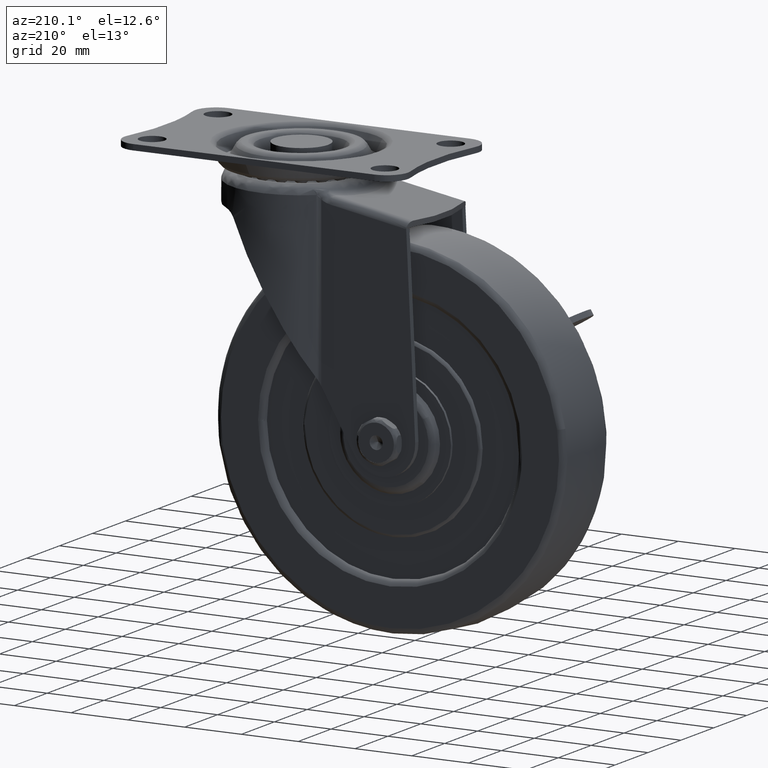
[diagram: clean part render]
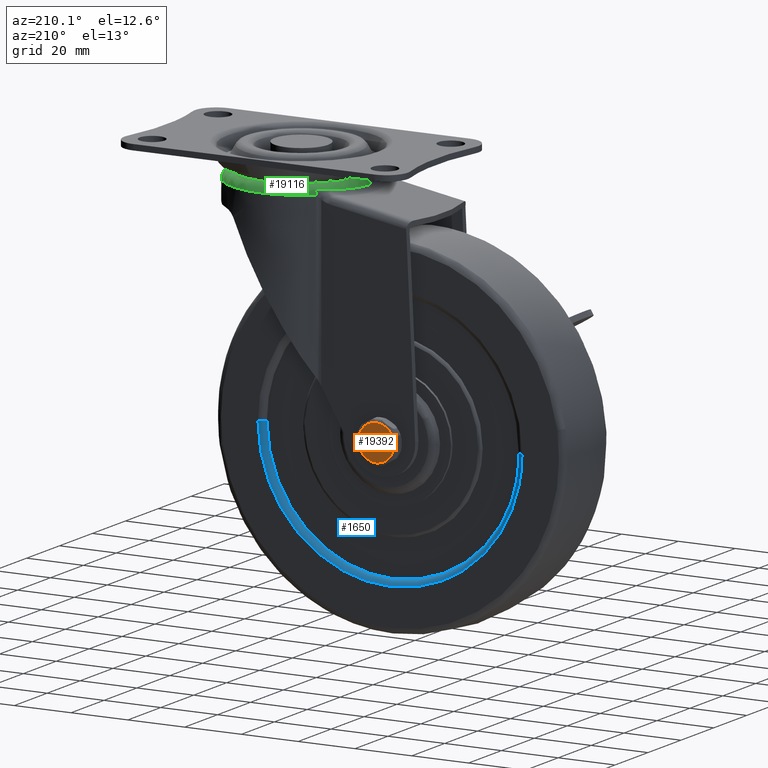
[diagram: same view with three faces highlighted in distinct colors, each labeled with its STEP entity id]
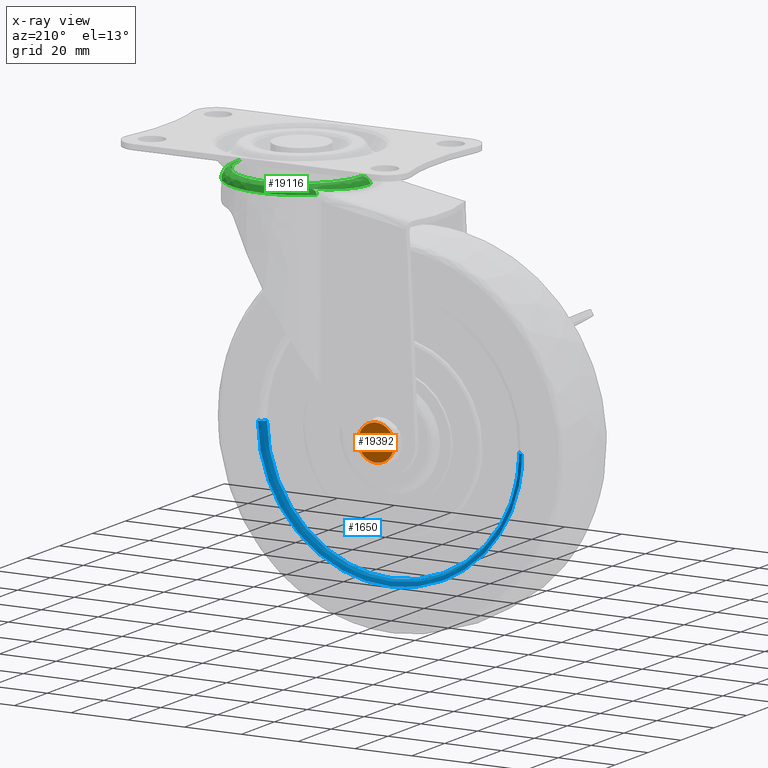
[diagram: x-ray of the same camera — body ghosted, the three highlighted faces saturated]
A machine part, auxiliary view with three faces highlighted in distinct colors.
The next image is the same camera in x-ray (body ghosted, the three faces saturated) — at least one of them is partly hidden behind the body in this view.
Their STEP definitions:

[orange] entity #19392 — the highlighted face is a freeform B-spline surface patch.
#19219=CARTESIAN_POINT('',(-39.0,21.899977000000099,-81.200000000000017));
#19220=VERTEX_POINT('',#19219);
#19226=CARTESIAN_POINT('',(-36.700000000000003,21.899977000000099,-83.499999962613131));
#19227=VERTEX_POINT('',#19226);
#19228=CARTESIAN_POINT('',(-39.0,21.899977000000099,-81.200000000000017));
#19229=CARTESIAN_POINT('',(-38.680043280916657,21.899977000000082,-81.199607695411345));
#19230=CARTESIAN_POINT('',(-38.097043868513033,21.899977000000192,-81.323700505396829));
#19231=CARTESIAN_POINT('',(-37.446073399224339,21.899977000000039,-81.758721596186646));
#19232=CARTESIAN_POINT('',(-37.025167456945617,21.899977000000110,-82.271748772366422));
#19233=CARTESIAN_POINT('',(-36.764259684013169,21.899977000000369,-82.841454471461631));
#19234=CARTESIAN_POINT('',(-36.699895989396737,21.899976999999922,-83.274188792091621));
#19235=CARTESIAN_POINT('',(-36.700000000000003,21.899977000000099,-83.499999962613131));
#19236=B_SPLINE_CURVE_WITH_KNOTS('',3,(#19228,#19229,#19230,#19231,#19232,#19233,#19234,#19235),.UNSPECIFIED.,.F.,.U.,(4,1,1,1,1,4),(0.000000568591018,0.959688155571762,1.750088887242357,2.314488197470865,2.935511421059009,3.612922191001572),.UNSPECIFIED.);
#19237=EDGE_CURVE('',#19220,#19227,#19236,.T.);
#19239=CARTESIAN_POINT('',(-39.0,21.899977000000099,-85.800000000000011));
#19240=VERTEX_POINT('',#19239);
#19241=CARTESIAN_POINT('',(-36.700000000000003,21.899977000000099,-83.499999962613131));
#19242=CARTESIAN_POINT('',(-36.699308927568637,21.899977000000060,-83.876497456280930));
#19243=CARTESIAN_POINT('',(-36.846381348828160,21.899977000000199,-84.459080024510271));
#19244=CARTESIAN_POINT('',(-37.302828607061642,21.899977000000000,-85.089930876763901));
#19245=CARTESIAN_POINT('',(-37.727793231173990,21.899977000000160,-85.438703684002746));
#19246=CARTESIAN_POINT('',(-38.285109229134591,21.899977000000082,-85.719286644313385));
#19247=CARTESIAN_POINT('',(-38.717702956053913,21.899977000000110,-85.800242344159471));
#19248=CARTESIAN_POINT('',(-39.0,21.899977000000099,-85.800000000000011));
#19249=B_SPLINE_CURVE_WITH_KNOTS('',3,(#19241,#19242,#19243,#19244,#19245,#19246,#19247,#19248),.UNSPECIFIED.,.F.,.U.,(4,1,1,1,1,4),(0.000000568537716,1.129061837099272,1.750088907571568,2.314488224536928,2.766146786319358,3.612922233146322),.UNSPECIFIED.);
#19250=EDGE_CURVE('',#19227,#19240,#19249,.T.);
#19278=CARTESIAN_POINT('',(-41.299999999999997,21.899977000000099,-83.500000037386869));
#19279=VERTEX_POINT('',#19278);
#19280=CARTESIAN_POINT('',(-39.0,21.899977000000099,-85.800000000000011));
#19281=CARTESIAN_POINT('',(-39.206981896674897,21.899977000000089,-85.800052974006121));
#19282=CARTESIAN_POINT('',(-39.620941352251911,21.899977000000138,-85.743775528898553));
#19283=CARTESIAN_POINT('',(-40.161993513680933,21.899977000000099,-85.511827317311514));
#19284=CARTESIAN_POINT('',(-40.629077016403293,21.899977000000131,-85.156445370502539));
#19285=CARTESIAN_POINT('',(-40.961287337321863,21.899977000000060,-84.741338297173996));
#19286=CARTESIAN_POINT('',(-41.228054272913482,21.899977000000149,-84.177281797794990));
#19287=CARTESIAN_POINT('',(-41.300180327831733,21.899977000000099,-83.763463169832946));
#19288=CARTESIAN_POINT('',(-41.299999999999997,21.899977000000099,-83.500000037386869));
#19289=B_SPLINE_CURVE_WITH_KNOTS('',3,(#19280,#19281,#19282,#19283,#19284,#19285,#19286,#19287,#19288),.UNSPECIFIED.,.F.,.U.,(4,1,1,1,1,1,4),(0.000000568589358,0.620955677129252,1.241960351690413,1.750088887241484,2.370976398831357,2.822605707102803,3.612922191001495),.UNSPECIFIED.);
#19290=EDGE_CURVE('',#19240,#19279,#19289,.T.);
#19292=CARTESIAN_POINT('',(-41.299999999999997,21.899977000000099,-83.500000037386869));
#19293=CARTESIAN_POINT('',(-41.300683530908387,21.899977000000181,-83.142326356791173));
#19294=CARTESIAN_POINT('',(-41.161055792674013,21.899976999999989,-82.559696282035958));
#19295=CARTESIAN_POINT('',(-40.657219118326033,21.899977000000199,-81.844190890191484));
#19296=CARTESIAN_POINT('',(-39.959368177592182,21.899977000000000,-81.339586241588592));
#19297=CARTESIAN_POINT('',(-39.338740191148979,21.899977000000160,-81.199591214428878));
#19298=CARTESIAN_POINT('',(-39.0,21.899977000000099,-81.200000000000017));
#19299=B_SPLINE_CURVE_WITH_KNOTS('',3,(#19292,#19293,#19294,#19295,#19296,#19297,#19298),.UNSPECIFIED.,.F.,.U.,(4,1,1,1,4),(0.000000568537930,1.072594207634911,1.750088907571577,2.596778110241645,3.612922233146314),.UNSPECIFIED.);
#19300=EDGE_CURVE('',#19279,#19220,#19299,.T.);
#19307=CARTESIAN_POINT('',(-45.929370195557368,21.899977000000050,-76.570629804441239));
#19308=CARTESIAN_POINT('',(-45.929370195557368,21.899977000000050,-90.429370533517115));
#19309=CARTESIAN_POINT('',(-32.070629466484277,21.899977000000050,-76.570629804441239));
#19310=CARTESIAN_POINT('',(-32.070629466484277,21.899977000000050,-90.429370533517115));
#19311=B_SPLINE_SURFACE_WITH_KNOTS('',1,1,((#19307,#19309),(#19308,#19310)),.UNSPECIFIED.,.F.,.F.,.U.,(2,2),(2,2),(0.0,13.858740729075871),(0.0,13.858740729073080),.UNSPECIFIED.);
#19312=CARTESIAN_POINT('',(-39.0,21.899977000000050,-77.199999800000001));
#19313=VERTEX_POINT('',#19312);
#19314=CARTESIAN_POINT('',(-32.699999800001272,21.899977000000050,-83.500003987988094));
#19315=VERTEX_POINT('',#19314);
#19316=CARTESIAN_POINT('',(-39.0,21.899977000000050,-77.199999800000001));
#19317=CARTESIAN_POINT('',(-38.329905645532172,21.899977000000050,-77.199641607037933));
#19318=CARTESIAN_POINT('',(-37.350860548077343,21.899977000000039,-77.357735282801301));
#19319=CARTESIAN_POINT('',(-36.061671938305992,21.899977000000071,-77.891874238946187));
#19320=CARTESIAN_POINT('',(-35.099035302932343,21.899976999999961,-78.501399067909745));
#19321=CARTESIAN_POINT('',(-34.198837209303832,21.899977000000138,-79.358475290446080));
#19322=CARTESIAN_POINT('',(-33.483124397174713,21.899976999999989,-80.374706947941064));
#19323=CARTESIAN_POINT('',(-32.874376142465678,21.899977000000060,-81.747785926569506));
#19324=CARTESIAN_POINT('',(-32.699634132471203,21.899977000000181,-82.829912431492474));
#19325=CARTESIAN_POINT('',(-32.699999800001272,21.899977000000050,-83.500003987988094));
#19326=B_SPLINE_CURVE_WITH_KNOTS('',3,(#19316,#19317,#19318,#19319,#19320,#19321,#19322,#19323,#19324,#19325),.UNSPECIFIED.,.F.,.U.,(4,1,1,1,1,1,1,4),(0.000000168659554,2.010166050306901,2.937968078399291,4.175042789420404,5.411981030164508,6.649023651199970,7.886101871104133,9.896267751228919),.UNSPECIFIED.);
#19327=EDGE_CURVE('',#19313,#19315,#19326,.T.);
#19328=ORIENTED_EDGE('',*,*,#19327,.T.);
#19329=CARTESIAN_POINT('',(-34.430140775598403,21.899976999990020,-87.836634839838041));
#19330=VERTEX_POINT('',#19329);
#19331=CARTESIAN_POINT('',(-32.699999800001272,21.899977000000050,-83.500003987988094));
#19332=CARTESIAN_POINT('',(-32.698940850980442,21.899976999998039,-84.347172804762820));
#19333=CARTESIAN_POINT('',(-33.026875853403872,21.899976999994440,-85.940578323890350));
#19334=CARTESIAN_POINT('',(-33.915216676893138,21.899976999991249,-87.294863771438827));
#19335=CARTESIAN_POINT('',(-34.430140775598403,21.899976999990020,-87.836634839838041));
#19336=B_SPLINE_CURVE_WITH_KNOTS('',3,(#19331,#19332,#19333,#19334,#19335),.UNSPECIFIED.,.F.,.U.,(4,1,4),(0.000000058221381,2.541056882124225,4.783183777210583),.UNSPECIFIED.);
#19337=EDGE_CURVE('',#19315,#19330,#19336,.T.);
#19338=ORIENTED_EDGE('',*,*,#19337,.T.);
#19339=CARTESIAN_POINT('',(-39.0,21.899977000000050,-89.800000200000014));
#19340=VERTEX_POINT('',#19339);
#19341=CARTESIAN_POINT('',(-34.430140775598403,21.899976999990020,-87.836634839838041));
#19342=CARTESIAN_POINT('',(-34.979570624826579,21.899976999991221,-88.416813325256001));
#19343=CARTESIAN_POINT('',(-35.994333818058479,21.899976999993491,-89.141687384305300));
#19344=CARTESIAN_POINT('',(-37.615303057194808,21.899976999997008,-89.696136533359379));
#19345=CARTESIAN_POINT('',(-38.520649375380643,21.899976999999030,-89.800095257769996));
#19346=CARTESIAN_POINT('',(-39.0,21.899977000000050,-89.800000200000014));
#19347=B_SPLINE_CURVE_WITH_KNOTS('',3,(#19341,#19342,#19343,#19344,#19345,#19346),.UNSPECIFIED.,.F.,.U.,(4,1,1,4),(0.000000044692816,2.396756971834563,3.675025704622030,5.113079344944419),.UNSPECIFIED.);
#19348=EDGE_CURVE('',#19330,#19340,#19347,.T.);
#19349=ORIENTED_EDGE('',*,*,#19348,.T.);
#19350=CARTESIAN_POINT('',(-45.300000199998742,21.899977000000050,-83.499996012011977));
#19351=VERTEX_POINT('',#19350);
#19352=CARTESIAN_POINT('',(-39.0,21.899977000000050,-89.800000200000014));
#19353=CARTESIAN_POINT('',(-39.773264276601822,21.899977000000010,-89.800722955834189));
#19354=CARTESIAN_POINT('',(-40.958128355802302,21.899977000000131,-89.578845515217665));
#19355=CARTESIAN_POINT('',(-42.577361412985823,21.899976999999971,-88.763843886198657));
#19356=CARTESIAN_POINT('',(-43.682067388234067,21.899977000000099,-87.811103390592109));
#19357=CARTESIAN_POINT('',(-44.457138455632723,21.899977000000028,-86.709926172211823));
#19358=CARTESIAN_POINT('',(-45.098240362152730,21.899977000000039,-85.355134609666678));
#19359=CARTESIAN_POINT('',(-45.300677957904767,21.899977000000071,-84.273242826601503));
#19360=CARTESIAN_POINT('',(-45.300000199998742,21.899977000000050,-83.499996012011977));
#19361=B_SPLINE_CURVE_WITH_KNOTS('',3,(#19352,#19353,#19354,#19355,#19356,#19357,#19358,#19359,#19360),.UNSPECIFIED.,.F.,.U.,(4,1,1,1,1,1,4),(0.000000168655509,2.319436469262782,3.556518993495343,5.411981030164360,6.649023651200336,7.576831451330290,9.896267751228915),.UNSPECIFIED.);
#19362=EDGE_CURVE('',#19340,#19351,#19361,.T.);
#19363=ORIENTED_EDGE('',*,*,#19362,.T.);
#19364=CARTESIAN_POINT('',(-43.569859224401583,21.899976999990020,-79.163365160161959));
#19365=VERTEX_POINT('',#19364);
#19366=CARTESIAN_POINT('',(-45.300000199998742,21.899977000000050,-83.499996012011977));
#19367=CARTESIAN_POINT('',(-45.300179651073798,21.899976999998788,-82.951915082605368));
#19368=CARTESIAN_POINT('',(-45.175636933274717,21.899976999996579,-82.005366094809247));
#19369=CARTESIAN_POINT('',(-44.617689841257267,21.899976999993140,-80.504120788265084));
#19370=CARTESIAN_POINT('',(-44.015978478549322,21.899976999991040,-79.633011492009373));
#19371=CARTESIAN_POINT('',(-43.569859224401583,21.899976999990020,-79.163365160161959));
#19372=B_SPLINE_CURVE_WITH_KNOTS('',3,(#19366,#19367,#19368,#19369,#19370,#19371),.UNSPECIFIED.,.F.,.U.,(4,1,1,4),(0.000000058224711,1.644235513682417,2.839996938005005,4.783183777210668),.UNSPECIFIED.);
#19373=EDGE_CURVE('',#19351,#19365,#19372,.T.);
#19374=ORIENTED_EDGE('',*,*,#19373,.T.);
#19375=CARTESIAN_POINT('',(-43.569859224401583,21.899976999990020,-79.163365160161959));
#19376=CARTESIAN_POINT('',(-43.020431758566161,21.899976999991249,-78.583192274436911));
#19377=CARTESIAN_POINT('',(-42.005664812559992,21.899976999993410,-77.858309267800294));
#19378=CARTESIAN_POINT('',(-40.384697391167720,21.899976999997069,-77.303864957330433));
#19379=CARTESIAN_POINT('',(-39.479351064884092,21.899976999998930,-77.199904159735709));
#19380=CARTESIAN_POINT('',(-39.0,21.899977000000050,-77.199999800000001));
#19381=B_SPLINE_CURVE_WITH_KNOTS('',3,(#19375,#19376,#19377,#19378,#19379,#19380),.UNSPECIFIED.,.F.,.U.,(4,1,1,4),(0.000000044693811,2.396756971834755,3.675025704621969,5.113079344944389),.UNSPECIFIED.);
#19382=EDGE_CURVE('',#19365,#19313,#19381,.T.);
#19383=ORIENTED_EDGE('',*,*,#19382,.T.);
#19384=EDGE_LOOP('',(#19328,#19338,#19349,#19363,#19374,#19383));
#19385=FACE_OUTER_BOUND('',#19384,.T.);
#19386=ORIENTED_EDGE('',*,*,#19237,.F.);
#19387=ORIENTED_EDGE('',*,*,#19300,.F.);
#19388=ORIENTED_EDGE('',*,*,#19290,.F.);
#19389=ORIENTED_EDGE('',*,*,#19250,.F.);
#19390=EDGE_LOOP('',(#19386,#19387,#19388,#19389));
#19391=FACE_BOUND('',#19390,.T.);
#19392=ADVANCED_FACE('',(#19385,#19391),#19311,.F.);

[blue] entity #1650 — the highlighted face is a freeform B-spline surface patch.
#1417=CARTESIAN_POINT('',(5.499999999999994,11.500000000336749,-83.500000000000000));
#1418=VERTEX_POINT('',#1417);
#1436=CARTESIAN_POINT('',(-39.0,11.500000000000000,-128.0));
#1437=VERTEX_POINT('',#1436);
#1438=CARTESIAN_POINT('',(5.499999999999994,11.500000000336749,-83.500000000000000));
#1439=CARTESIAN_POINT('',(5.501095709621974,11.500000000322631,-87.231771956159463));
#1440=CARTESIAN_POINT('',(4.739703347586644,11.500000000297010,-93.238276783173717));
#1441=CARTESIAN_POINT('',(2.326103529676426,11.500000000261130,-100.323817290707100));
#1442=CARTESIAN_POINT('',(-0.431746373381908,11.500000000229081,-105.974491272562900));
#1443=CARTESIAN_POINT('',(-3.527604417023891,11.500000000200210,-110.607869287791000));
#1444=CARTESIAN_POINT('',(-7.889615655257165,11.500000000164670,-115.510325501181400));
#1445=CARTESIAN_POINT('',(-12.812422811459539,11.500000000130470,-119.730791812222710));
#1446=CARTESIAN_POINT('',(-18.129460674823189,11.500000000098090,-122.939720709102500));
#1447=CARTESIAN_POINT('',(-23.959423493369648,11.500000000066359,-125.524046259319210));
#1448=CARTESIAN_POINT('',(-30.535606617927609,11.500000000033831,-127.452995209059590));
#1449=CARTESIAN_POINT('',(-36.087467763319189,11.500000000011500,-128.000373858092590));
#1450=CARTESIAN_POINT('',(-39.0,11.500000000000000,-128.0));
#1451=B_SPLINE_CURVE_WITH_KNOTS('',3,(#1438,#1439,#1440,#1441,#1442,#1443,#1444,#1445,#1446,#1447,#1448,#1449,#1450),.UNSPECIFIED.,.F.,.U.,(4,1,1,1,1,1,1,1,1,1,4),(0.000000150407701,11.194974218140670,18.021236157259299,22.390029784453429,30.035465927513538,34.677314554955110,42.049484717309547,49.421858302059817,53.244559038070953,61.163011525678407,69.900546195872209),.UNSPECIFIED.);
#1452=EDGE_CURVE('',#1418,#1437,#1451,.T.);
#1454=CARTESIAN_POINT('',(-83.499999999999986,11.500000000336749,-83.500000000000014));
#1455=VERTEX_POINT('',#1454);
#1456=CARTESIAN_POINT('',(-39.0,11.500000000000000,-128.0));
#1457=CARTESIAN_POINT('',(-42.276641278847343,11.500000000012330,-128.000643746098210));
#1458=CARTESIAN_POINT('',(-47.191196482396599,11.500000000033140,-127.454575152181500));
#1459=CARTESIAN_POINT('',(-53.944292017460377,11.500000000065810,-125.540952122712600));
#1460=CARTESIAN_POINT('',(-58.898643573948029,11.500000000092561,-123.435116953715910));
#1461=CARTESIAN_POINT('',(-64.648063739012116,11.500000000126960,-120.084645981477490));
#1462=CARTESIAN_POINT('',(-69.550395250708888,11.500000000160631,-116.111346619095200));
#1463=CARTESIAN_POINT('',(-74.431914181068933,11.500000000199440,-110.691974915607600));
#1464=CARTESIAN_POINT('',(-77.969242283034134,11.500000000233401,-105.362798553049200));
#1465=CARTESIAN_POINT('',(-80.856223338117829,11.500000000267800,-99.059392082617407));
#1466=CARTESIAN_POINT('',(-82.937535092767774,11.500000000302499,-91.964330892995690));
#1467=CARTESIAN_POINT('',(-83.500471258285131,11.500000000325279,-86.594567137924244));
#1468=CARTESIAN_POINT('',(-83.499999999999986,11.500000000336749,-83.500000000000014));
#1469=B_SPLINE_CURVE_WITH_KNOTS('',3,(#1456,#1457,#1458,#1459,#1460,#1461,#1462,#1463,#1464,#1465,#1466,#1467,#1468),.UNSPECIFIED.,.F.,.U.,(4,1,1,1,1,1,1,1,1,1,4),(0.000000150272314,9.829723992034658,14.744630871790109,21.024788737422160,25.939663578315969,34.677314554884568,39.865081154134032,47.783547530530207,53.790657724606547,60.616929668723422,69.900546195872323),.UNSPECIFIED.);
#1470=EDGE_CURVE('',#1437,#1455,#1469,.T.);
#1521=CARTESIAN_POINT('',(-85.499999995176850,13.500000000000000,-83.500000000000028));
#1522=VERTEX_POINT('',#1521);
#1523=CARTESIAN_POINT('',(-85.499999995176850,13.500000000000000,-83.500000000000028));
#1524=CARTESIAN_POINT('',(-85.287276550472143,13.500106203011651,-83.500000000000142));
#1525=CARTESIAN_POINT('',(-84.894666393143851,13.436730921115160,-83.499999999999957));
#1526=CARTESIAN_POINT('',(-84.300923342440342,13.147201580215251,-83.500000000000171));
#1527=CARTESIAN_POINT('',(-83.876412523873213,12.722652602914289,-83.499999999999815));
#1528=CARTESIAN_POINT('',(-83.573271493882430,12.137986995358920,-83.500000000000725));
#1529=CARTESIAN_POINT('',(-83.499776126116075,11.745476761175370,-83.499999999998394));
#1530=CARTESIAN_POINT('',(-83.499999999999986,11.500000000336749,-83.500000000000014));
#1531=B_SPLINE_CURVE_WITH_KNOTS('',3,(#1523,#1524,#1525,#1526,#1527,#1528,#1529,#1530),.UNSPECIFIED.,.F.,.U.,(4,1,1,1,1,4),(0.000000632996267,0.638145698779228,1.178170114691719,1.963502004179996,2.405343519697170,3.141671485887760),.UNSPECIFIED.);
#1532=EDGE_CURVE('',#1522,#1455,#1531,.T.);
#1553=CARTESIAN_POINT('',(7.499999995176859,13.500000000000000,-83.499999999999972));
#1554=VERTEX_POINT('',#1553);
#1572=CARTESIAN_POINT('',(7.499999995176859,13.500000000000000,-83.499999999999972));
#1573=CARTESIAN_POINT('',(7.320020320770468,13.500044030685849,-83.500000000000043));
#1574=CARTESIAN_POINT('',(6.927322508527704,13.446672476681931,-83.499999999999901));
#1575=CARTESIAN_POINT('',(6.324524378838445,13.170839708858191,-83.500000000000128));
#1576=CARTESIAN_POINT('',(5.899986743466039,12.746244117292211,-83.500000000000171));
#1577=CARTESIAN_POINT('',(5.583313803731103,12.170617713393719,-83.500000000000000));
#1578=CARTESIAN_POINT('',(5.499615255203899,11.778243022437010,-83.500000000000014));
#1579=CARTESIAN_POINT('',(5.499999999999994,11.500000000336749,-83.500000000000000));
#1580=B_SPLINE_CURVE_WITH_KNOTS('',3,(#1572,#1573,#1574,#1575,#1576,#1577,#1578,#1579),.UNSPECIFIED.,.F.,.U.,(4,1,1,1,1,4),(0.000000633005274,0.539958778074503,1.178170114699498,1.963502004185218,2.307164025635025,3.141671485887593),.UNSPECIFIED.);
#1581=EDGE_CURVE('',#1554,#1418,#1580,.T.);
#1587=CARTESIAN_POINT('',(7.638701263575776,13.495184693075421,-83.500000000000000));
#1588=CARTESIAN_POINT('',(7.638701263575780,13.495184693075425,-130.138701263575740));
#1589=CARTESIAN_POINT('',(-38.999999999999993,13.495184693075421,-130.138701263575830));
#1590=CARTESIAN_POINT('',(-85.638701263575769,13.495184693075425,-130.138701263575740));
#1591=CARTESIAN_POINT('',(-85.638701263575783,13.495184693075421,-83.500000000000014));
#1592=CARTESIAN_POINT('',(5.344521420944485,13.654671503568432,-83.500000000000014));
#1593=CARTESIAN_POINT('',(5.344521420944483,13.654671503568428,-127.844521420944450));
#1594=CARTESIAN_POINT('',(-39.0,13.654671503568432,-127.844521420944500));
#1595=CARTESIAN_POINT('',(-83.344521420944460,13.654671503568428,-127.844521420944450));
#1596=CARTESIAN_POINT('',(-83.344521420944488,13.654671503568432,-83.500000000000014));
#1597=CARTESIAN_POINT('',(5.504867390451024,11.360551549616591,-83.500000000000000));
#1598=CARTESIAN_POINT('',(5.504867390451024,11.360551549616590,-128.004867390451010));
#1599=CARTESIAN_POINT('',(-38.999999999999993,11.360551549616591,-128.004867390451010));
#1600=CARTESIAN_POINT('',(-83.504867390451011,11.360551549616590,-128.004867390451010));
#1601=CARTESIAN_POINT('',(-83.504867390451025,11.360551549616591,-83.500000000000014));
#1609=(BOUNDED_SURFACE()B_SPLINE_SURFACE(2,2,((#1587,#1592,#1597),(#1588,#1593,#1598),(#1589,#1594,#1599),(#1590,#1595,#1600),(#1591,#1596,#1601)),.UNSPECIFIED.,.F.,.F.,.U.)B_SPLINE_SURFACE_WITH_KNOTS((3,2,3),(3,3),(0.0,77.273530379361176,154.547060758722410),(0.0,3.644740888493940),.UNSPECIFIED.)GEOMETRIC_REPRESENTATION_ITEM()RATIONAL_B_SPLINE_SURFACE(((0.910068206218876,0.595552946883686,0.905027191126598),(0.643515399959645,0.421119527297086,0.639950864003831),(0.910068206218876,0.595552946883686,0.905027191126598),(0.643515399959645,0.421119527297086,0.639950864003831),(0.910068206218876,0.595552946883686,0.905027191126598)))REPRESENTATION_ITEM('')SURFACE());
#1610=ORIENTED_EDGE('',*,*,#1470,.F.);
#1611=ORIENTED_EDGE('',*,*,#1452,.F.);
#1612=ORIENTED_EDGE('',*,*,#1581,.F.);
#1613=CARTESIAN_POINT('',(-39.0,13.500000000000000,-130.0));
#1614=VERTEX_POINT('',#1613);
#1615=CARTESIAN_POINT('',(7.499999995176859,13.500000000000000,-83.499999999999972));
#1616=CARTESIAN_POINT('',(7.500175181754698,13.500000000000011,-85.972767936698816));
#1617=CARTESIAN_POINT('',(7.172922568899669,13.500000000000011,-90.062271908145973));
#1618=CARTESIAN_POINT('',(5.652530582822758,13.499999999999890,-97.138816670004459));
#1619=CARTESIAN_POINT('',(3.126808631958182,13.500000000000410,-103.746519184942900));
#1620=CARTESIAN_POINT('',(-1.187710509415098,13.499999999999590,-110.944717022160210));
#1621=CARTESIAN_POINT('',(-6.410714861800829,13.500000000000140,-117.037592822304300));
#1622=CARTESIAN_POINT('',(-12.806199446391730,13.499999999999851,-122.188199986642100));
#1623=CARTESIAN_POINT('',(-18.720683930408970,13.500000000000471,-125.490810806779610));
#1624=CARTESIAN_POINT('',(-24.290839499624148,13.499999999999840,-127.718230586878310));
#1625=CARTESIAN_POINT('',(-30.725883431711921,13.500000000000121,-129.477948836726510));
#1626=CARTESIAN_POINT('',(-35.861450527810653,13.499999999999931,-130.000490106347710));
#1627=CARTESIAN_POINT('',(-39.0,13.500000000000000,-130.0));
#1628=B_SPLINE_CURVE_WITH_KNOTS('',3,(#1615,#1616,#1617,#1618,#1619,#1620,#1621,#1622,#1623,#1624,#1625,#1626,#1627),.UNSPECIFIED.,.F.,.U.,(4,1,1,1,1,1,1,1,1,1,4),(0.000000143604382,7.418279399391665,12.268772572441430,21.684393823707140,28.532098575266239,37.377015319550978,45.651287913815473,53.069680631339921,57.634824038545887,63.626607016500913,73.042143773170864),.UNSPECIFIED.);
#1629=EDGE_CURVE('',#1554,#1614,#1628,.T.);
#1630=ORIENTED_EDGE('',*,*,#1629,.T.);
#1631=CARTESIAN_POINT('',(-39.0,13.500000000000000,-130.0));
#1632=CARTESIAN_POINT('',(-42.043432148172691,13.499999999999970,-130.000341870293200));
#1633=CARTESIAN_POINT('',(-46.703503078280797,13.500000000000091,-129.540826041188210));
#1634=CARTESIAN_POINT('',(-53.719161335827117,13.499999999999790,-127.760532015698800));
#1635=CARTESIAN_POINT('',(-59.383262883310501,13.500000000000540,-125.475299384984890));
#1636=CARTESIAN_POINT('',(-64.981259247251799,13.499999999999460,-122.212466069581100));
#1637=CARTESIAN_POINT('',(-70.505374073339752,13.500000000000259,-117.983127055798510));
#1638=CARTESIAN_POINT('',(-75.742999271950538,13.500000000000240,-112.413863909328500));
#1639=CARTESIAN_POINT('',(-79.938335426865279,13.499999999999361,-105.921224309928310));
#1640=CARTESIAN_POINT('',(-82.562089535470022,13.500000000000210,-100.098358786690700));
#1641=CARTESIAN_POINT('',(-84.819197179971454,13.499999999999860,-92.820072114764457));
#1642=CARTESIAN_POINT('',(-85.500964656892833,13.500000000000069,-87.304385899944947));
#1643=CARTESIAN_POINT('',(-85.499999995176850,13.500000000000000,-83.500000000000028));
#1644=B_SPLINE_CURVE_WITH_KNOTS('',3,(#1631,#1632,#1633,#1634,#1635,#1636,#1637,#1638,#1639,#1640,#1641,#1642,#1643),.UNSPECIFIED.,.F.,.U.,(4,1,1,1,1,1,1,1,1,1,4),(0.000000143609057,9.130222912694443,13.980722930652369,21.684393823696279,27.390860056710729,33.382579477736620,42.512739884608003,50.216449361319839,56.493544700126108,61.629315052912808,73.042143773158813),.UNSPECIFIED.);
#1645=EDGE_CURVE('',#1614,#1522,#1644,.T.);
#1646=ORIENTED_EDGE('',*,*,#1645,.T.);
#1647=ORIENTED_EDGE('',*,*,#1532,.T.);
#1648=EDGE_LOOP('',(#1610,#1611,#1612,#1630,#1646,#1647));
#1649=FACE_OUTER_BOUND('',#1648,.T.);
#1650=ADVANCED_FACE('',(#1649),#1609,.T.);

[green] entity #19116 — the highlighted face is a freeform B-spline surface patch.
#17147=CARTESIAN_POINT('',(-16.073237620471151,18.490566037735849,-9.400001999999999));
#17148=VERTEX_POINT('',#17147);
#17507=CARTESIAN_POINT('',(24.500000000000000,1.303388E-015,-9.400001998314460));
#17508=VERTEX_POINT('',#17507);
#17509=CARTESIAN_POINT('',(-16.073237620471151,18.490566037735849,-9.400001999999999));
#17510=CARTESIAN_POINT('',(-14.807307544675281,19.591258182902301,-9.400001999973718));
#17511=CARTESIAN_POINT('',(-11.868229343905510,21.657844044326868,-9.400001999904971));
#17512=CARTESIAN_POINT('',(-7.732402409746041,23.377602282945119,-9.400001999789710));
#17513=CARTESIAN_POINT('',(-3.317098138978638,24.385107781104129,-9.400001999653608));
#17514=CARTESIAN_POINT('',(0.489684996382694,24.627496895319130,-9.400001999526472));
#17515=CARTESIAN_POINT('',(4.920881497829626,24.115489605047429,-9.400001999365980));
#17516=CARTESIAN_POINT('',(8.440863525940733,23.102323867500250,-9.400001999229090));
#17517=CARTESIAN_POINT('',(11.890804066258550,21.511318074307031,-9.400001999085353));
#17518=CARTESIAN_POINT('',(15.401338251084191,19.259078659882949,-9.400001998929534));
#17519=CARTESIAN_POINT('',(18.573541381127189,16.201651267625881,-9.400001998771964));
#17520=CARTESIAN_POINT('',(20.940014205845550,12.859609416692059,-9.400001998638640));
#17521=CARTESIAN_POINT('',(22.668790864490099,9.557670078940825,-9.400001998527179));
#17522=CARTESIAN_POINT('',(24.100008402770619,5.324292914275842,-9.400001998411765));
#17523=CARTESIAN_POINT('',(24.500370709799888,1.896364485178206,-9.400001998344152));
#17524=CARTESIAN_POINT('',(24.500000000000000,1.303388E-015,-9.400001998314460));
#17525=B_SPLINE_CURVE_WITH_KNOTS('',3,(#17509,#17510,#17511,#17512,#17513,#17514,#17515,#17516,#17517,#17518,#17519,#17520,#17521,#17522,#17523,#17524),.UNSPECIFIED.,.F.,.U.,(4,1,1,1,1,1,1,1,1,1,1,1,1,4),(0.000000361610013,5.032610843961955,10.721855573401699,13.347625518406231,18.599165758365899,22.100178509822481,26.695359312822639,29.539813376783620,33.478372266640207,39.167603596791380,42.668639185325759,45.732035165663731,50.327191471733101,56.016252126548032),.UNSPECIFIED.);
#17526=EDGE_CURVE('',#17148,#17508,#17525,.T.);
#18347=CARTESIAN_POINT('',(-14.831173622303300,18.744190700571451,-7.602749815379390));
#18348=VERTEX_POINT('',#18347);
#18529=CARTESIAN_POINT('',(-16.073237620471151,18.490566037735849,-9.400001999999999));
#18530=CARTESIAN_POINT('',(-16.073237620471151,18.490566037735849,-9.205766596151131));
#18531=CARTESIAN_POINT('',(-16.036150860471881,18.498159537195399,-9.018701303825997));
#18532=CARTESIAN_POINT('',(-15.949727476678399,18.515850672668140,-8.792934061668987));
#18533=CARTESIAN_POINT('',(-15.930497921750341,18.519786863607219,-8.748456105430769));
#18534=CARTESIAN_POINT('',(-15.888956685922100,18.528289514042989,-8.661866807582424));
#18535=CARTESIAN_POINT('',(-15.866643523244511,18.532856278755379,-8.619710945578365));
#18536=CARTESIAN_POINT('',(-15.795547133337980,18.547405865087729,-8.496312090276735));
#18537=CARTESIAN_POINT('',(-15.742628678444150,18.558233619647709,-8.418121837234926));
#18538=CARTESIAN_POINT('',(-15.627538086741151,18.581773941243370,-8.268571794296255));
#18539=CARTESIAN_POINT('',(-15.565355184723201,18.594488728066541,-8.197219954501120));
#18540=CARTESIAN_POINT('',(-15.466023424585771,18.614787893781472,-8.094662390967939));
#18541=CARTESIAN_POINT('',(-15.431890130506410,18.621761427779369,-8.061225356208759));
#18542=CARTESIAN_POINT('',(-15.362415897818851,18.635950446480731,-7.996378593294504));
#18543=CARTESIAN_POINT('',(-15.326990731953050,18.643183147156080,-7.964879188140277));
#18544=CARTESIAN_POINT('',(-15.146729739991240,18.679972204483999,-7.811591262201485));
#18545=CARTESIAN_POINT('',(-14.992622553112620,18.711378925277739,-7.702250091232986));
#18546=CARTESIAN_POINT('',(-14.831173622303300,18.744190700571451,-7.602749815379400));
#18547=B_SPLINE_CURVE_WITH_KNOTS('',3,(#18529,#18530,#18531,#18532,#18533,#18534,#18535,#18536,#18537,#18538,#18539,#18540,#18541,#18542,#18543,#18544,#18545,#18546),.UNSPECIFIED.,.F.,.U.,(4,2,2,2,2,2,2,2,4),(0.0,0.249999999999994,0.312499999999994,0.374999999999994,0.499999999999994,0.624999999999994,0.687499999999994,0.749999999999993,1.0),.UNSPECIFIED.);
#18548=EDGE_CURVE('',#17148,#18348,#18547,.T.);
#18777=CARTESIAN_POINT('',(-24.401149374413670,-1.765412E-015,-8.636240055845201));
#18778=VERTEX_POINT('',#18777);
#18818=CARTESIAN_POINT('',(-14.831173622303300,18.744190700571451,-7.602749815379390));
#18819=CARTESIAN_POINT('',(-15.019421091845009,18.614610832163471,-7.623050909111390));
#18820=CARTESIAN_POINT('',(-15.205409956177540,18.481921019441501,-7.643115263348669));
#18821=CARTESIAN_POINT('',(-15.572927880181179,18.210400160521431,-7.682773864553062));
#18822=CARTESIAN_POINT('',(-15.754541305834580,18.071501731328020,-7.702377222008615));
#18823=CARTESIAN_POINT('',(-16.292157625717721,17.646142107514951,-7.760420739879558));
#18824=CARTESIAN_POINT('',(-16.640388727081920,17.351490026426958,-7.798035017189882));
#18825=CARTESIAN_POINT('',(-17.317043118165010,16.740626527851340,-7.871143703581009));
#18826=CARTESIAN_POINT('',(-17.645464850135010,16.424413419037592,-7.906637981802449));
#18827=CARTESIAN_POINT('',(-18.282741358651428,15.770688641392260,-7.975520595569620));
#18828=CARTESIAN_POINT('',(-18.591976629751489,15.432689468930930,-8.008950091779314));
#18829=CARTESIAN_POINT('',(-19.187570605610031,14.739343491590910,-8.073336794377187));
#18830=CARTESIAN_POINT('',(-19.474262477102791,14.383710334403879,-8.104330027539303));
#18831=CARTESIAN_POINT('',(-19.887858375570509,13.836994080898430,-8.149038891199947));
#18832=CARTESIAN_POINT('',(-20.022981053290358,13.652542386703191,-8.163644788457249));
#18833=CARTESIAN_POINT('',(-20.287750338347230,13.279220475452000,-8.192263016944953));
#18834=CARTESIAN_POINT('',(-20.417327447975829,13.090433244073610,-8.206267834409426));
#18835=CARTESIAN_POINT('',(-21.048943045887729,12.139504266166099,-8.274528482088805));
#18836=CARTESIAN_POINT('',(-21.504559774478821,11.353434423929910,-8.323751146282200));
#18837=CARTESIAN_POINT('',(-22.320243519804698,9.732579707367018,-8.411836703567985));
#18838=CARTESIAN_POINT('',(-22.680294867668739,8.897786867736960,-8.450698326074605));
#18839=CARTESIAN_POINT('',(-23.070131847055212,7.823590253640242,-8.492757349244879));
#18840=CARTESIAN_POINT('',(-23.145180592511910,7.606888791244910,-8.500853276267845));
#18841=CARTESIAN_POINT('',(-23.288613974045369,7.172113326374272,-8.516324549833037));
#18842=CARTESIAN_POINT('',(-23.356969608520640,6.954166610361446,-8.523696772431059));
#18843=CARTESIAN_POINT('',(-23.552104184664810,6.298674608323240,-8.544740070852340));
#18844=CARTESIAN_POINT('',(-23.668960410526701,5.859479066955626,-8.557338825296764));
#18845=CARTESIAN_POINT('',(-23.980668583733600,4.535429596076988,-8.590939877511010));
#18846=CARTESIAN_POINT('',(-24.136798513176618,3.644135856425567,-8.607762202651372));
#18847=CARTESIAN_POINT('',(-24.346661852953140,1.844519263885647,-8.630371569457942));
#18848=CARTESIAN_POINT('',(-24.400404306602599,0.936197917018417,-8.636159702382134));
#18849=CARTESIAN_POINT('',(-24.401146795225870,0.012707487868169,-8.636239776571735));
#18850=CARTESIAN_POINT('',(-24.401149357781229,0.006353622231943,-8.636240053305725));
#18851=CARTESIAN_POINT('',(-24.401149374413670,-1.765412E-015,-8.636240055845201));
#18852=B_SPLINE_CURVE_WITH_KNOTS('',3,(#18818,#18819,#18820,#18821,#18822,#18823,#18824,#18825,#18826,#18827,#18828,#18829,#18830,#18831,#18832,#18833,#18834,#18835,#18836,#18837,#18838,#18839,#18840,#18841,#18842,#18843,#18844,#18845,#18846,#18847,#18848,#18849,#18850,#18851),.UNSPECIFIED.,.F.,.U.,(4,2,2,2,2,2,2,2,2,2,2,2,2,2,2,2,4),(0.0,0.015625000000000,0.031250000000000,0.062500000000001,0.093750000000001,0.125000000000002,0.156250000000002,0.171875000000002,0.187500000000002,0.250000000000002,0.312500000000002,0.328125000000002,0.343750000000002,0.375000000000002,0.437500000000002,0.500000000000001,0.500433012841720),.UNSPECIFIED.);
#18853=EDGE_CURVE('',#18348,#18778,#18852,.T.);
#19030=CARTESIAN_POINT('',(-21.291948273606017,-3.911138E-015,-6.407224948640431));
#19031=CARTESIAN_POINT('',(-21.291948273606025,21.291948273606010,-6.407224948640429));
#19032=CARTESIAN_POINT('',(-5.214851E-015,21.291948273606017,-6.407224948640431));
#19033=CARTESIAN_POINT('',(21.291948273606010,21.291948273606025,-6.407224948640429));
#19034=CARTESIAN_POINT('',(21.291948273606017,6.518564E-015,-6.407224948640431));
#19035=CARTESIAN_POINT('',(-24.733217815759907,-4.543268E-015,-6.167994943549721));
#19036=CARTESIAN_POINT('',(-24.733217815759907,24.733217815759886,-6.167994943549720));
#19037=CARTESIAN_POINT('',(-6.057691E-015,24.733217815759907,-6.167994943549721));
#19038=CARTESIAN_POINT('',(24.733217815759886,24.733217815759907,-6.167994943549720));
#19039=CARTESIAN_POINT('',(24.733217815759907,7.572114E-015,-6.167994943549721));
#19040=CARTESIAN_POINT('',(-24.492698916677764,-4.499087E-015,-9.609174641890974));
#19041=CARTESIAN_POINT('',(-24.492698916677774,24.492698916677757,-9.609174641890974));
#19042=CARTESIAN_POINT('',(-5.998783E-015,24.492698916677764,-9.609174641890974));
#19043=CARTESIAN_POINT('',(24.492698916677757,24.492698916677774,-9.609174641890974));
#19044=CARTESIAN_POINT('',(24.492698916677764,7.498479E-015,-9.609174641890974));
#19052=(BOUNDED_SURFACE()B_SPLINE_SURFACE(2,2,((#19030,#19035,#19040),(#19031,#19036,#19041),(#19032,#19037,#19042),(#19033,#19038,#19043),(#19034,#19039,#19044)),.UNSPECIFIED.,.F.,.F.,.U.)B_SPLINE_SURFACE_WITH_KNOTS((3,2,3),(3,3),(0.0,40.580832281634983,81.161664563269952),(0.0,5.467111087527750),.UNSPECIFIED.)GEOMETRIC_REPRESENTATION_ITEM()RATIONAL_B_SPLINE_SURFACE(((0.915966621911565,0.599412927647948,0.910892953526734),(0.647686209694202,0.423848945870745,0.644098584373797),(0.915966621911565,0.599412927647948,0.910892953526734),(0.647686209694202,0.423848945870745,0.644098584373797),(0.915966621911565,0.599412927647948,0.910892953526734)))REPRESENTATION_ITEM('')SURFACE());
#19053=CARTESIAN_POINT('',(-21.500000003836188,-1.770490E-015,-6.400001999999999));
#19054=VERTEX_POINT('',#19053);
#19055=CARTESIAN_POINT('',(-21.500000003836188,-1.770490E-015,-6.400001999999999));
#19056=CARTESIAN_POINT('',(-21.869411895866090,-2.405088E-015,-6.399741268765951));
#19057=CARTESIAN_POINT('',(-22.608026665193400,-3.364434E-015,-6.538075692715334));
#19058=CARTESIAN_POINT('',(-23.406769498993679,-3.633900E-015,-7.032230056326640));
#19059=CARTESIAN_POINT('',(-24.045702008604501,-3.169186E-015,-7.732722349427466));
#19060=CARTESIAN_POINT('',(-24.302287663235170,-2.436598E-015,-8.258981318562590));
#19061=CARTESIAN_POINT('',(-24.401149374413670,-1.765412E-015,-8.636240055845201));
#19062=B_SPLINE_CURVE_WITH_KNOTS('',3,(#19055,#19056,#19057,#19058,#19059,#19060,#19061),.UNSPECIFIED.,.F.,.U.,(4,1,1,1,4),(0.000000346957712,1.108183828739243,2.216311952471170,2.770436968981568,3.940195305932885),.UNSPECIFIED.);
#19063=EDGE_CURVE('',#19054,#18778,#19062,.T.);
#19064=ORIENTED_EDGE('',*,*,#19063,.F.);
#19065=CARTESIAN_POINT('',(-0.000004488063605,21.499999999999531,-6.400001999999999));
#19066=VERTEX_POINT('',#19065);
#19067=CARTESIAN_POINT('',(-0.000004488063605,21.499999999999531,-6.400001999999999));
#19068=CARTESIAN_POINT('',(-1.495118143288981,21.500205700120151,-6.400002000000017));
#19069=CARTESIAN_POINT('',(-4.573268521927777,21.177712219740862,-6.400001999999971));
#19070=CARTESIAN_POINT('',(-8.186120999785368,19.984323919751979,-6.400002000000021));
#19071=CARTESIAN_POINT('',(-11.077976244350360,18.483595763332410,-6.400001999999978));
#19072=CARTESIAN_POINT('',(-13.413649279326391,16.902152094055559,-6.400002000000007));
#19073=CARTESIAN_POINT('',(-16.274408430062081,14.277856176016680,-6.400002000000017));
#19074=CARTESIAN_POINT('',(-18.817822838654472,10.758841972272750,-6.400001999999954));
#19075=CARTESIAN_POINT('',(-20.558564001985289,6.697409322821148,-6.400002000000088));
#19076=CARTESIAN_POINT('',(-21.351417572553611,3.166121771133588,-6.400001999999916));
#19077=CARTESIAN_POINT('',(-21.500019608809399,0.967410490132905,-6.400002000000055));
#19078=CARTESIAN_POINT('',(-21.500000003836188,-1.770490E-015,-6.400001999999999));
#19079=B_SPLINE_CURVE_WITH_KNOTS('',3,(#19067,#19068,#19069,#19070,#19071,#19072,#19073,#19074,#19075,#19076,#19077,#19078),.UNSPECIFIED.,.F.,.U.,(4,1,1,1,1,1,1,1,1,4),(0.000000133386386,4.485344064238969,9.234631860916569,11.345424153941719,14.247707171515341,17.677624499200778,22.954610543499349,27.176177146936151,30.870071413853680,33.772330406118257),.UNSPECIFIED.);
#19080=EDGE_CURVE('',#19066,#19054,#19079,.T.);
#19081=ORIENTED_EDGE('',*,*,#19080,.F.);
#19082=CARTESIAN_POINT('',(21.500000003836188,7.535010E-016,-6.400002000000000));
#19083=VERTEX_POINT('',#19082);
#19084=CARTESIAN_POINT('',(21.500000003836188,7.535010E-016,-6.400002000000000));
#19085=CARTESIAN_POINT('',(21.500247473840069,1.495126010162846,-6.400001999999990));
#19086=CARTESIAN_POINT('',(21.232823268330371,4.045522622893443,-6.400001999999998));
#19087=CARTESIAN_POINT('',(20.323997298473660,7.179315431075390,-6.400002000000021));
#19088=CARTESIAN_POINT('',(19.179113475806702,9.850103754756109,-6.400001999999982));
#19089=CARTESIAN_POINT('',(17.563087787893569,12.584476765918620,-6.400002000000016));
#19090=CARTESIAN_POINT('',(15.271941671488481,15.273629592699001,-6.400001999999933));
#19091=CARTESIAN_POINT('',(12.640287432596169,17.487913695079289,-6.400002000000046));
#19092=CARTESIAN_POINT('',(9.787311431758909,19.245914844340259,-6.400001999999933));
#19093=CARTESIAN_POINT('',(6.851348502187304,20.462021473734520,-6.400002000000015));
#19094=CARTESIAN_POINT('',(3.517863230157241,21.296958523129369,-6.400002000000002));
#19095=CARTESIAN_POINT('',(1.319213333635947,21.500146703516229,-6.400001999999997));
#19096=CARTESIAN_POINT('',(-0.000004488063605,21.499999999999531,-6.400001999999999));
#19097=B_SPLINE_CURVE_WITH_KNOTS('',3,(#19084,#19085,#19086,#19087,#19088,#19089,#19090,#19091,#19092,#19093,#19094,#19095,#19096),.UNSPECIFIED.,.F.,.U.,(4,1,1,1,1,1,1,1,1,1,4),(0.000000131826596,4.485344734623293,7.651544780194172,9.762320347471665,13.192377190552060,17.149977797279380,20.316108129966199,23.482322068892390,27.176181216636081,29.814683248646450,33.772335465243657),.UNSPECIFIED.);
#19098=EDGE_CURVE('',#19083,#19066,#19097,.T.);
#19099=ORIENTED_EDGE('',*,*,#19098,.F.);
#19100=CARTESIAN_POINT('',(21.500000003836188,7.535010E-016,-6.400002000000000));
#19101=CARTESIAN_POINT('',(21.941918733914822,6.390960E-016,-6.399399000314965));
#19102=CARTESIAN_POINT('',(22.579449131431488,5.380696E-016,-6.543507548441428));
#19103=CARTESIAN_POINT('',(23.446837897089580,5.436671E-016,-7.063523940740296));
#19104=CARTESIAN_POINT('',(24.024477960645999,6.689538E-016,-7.685115079747485));
#19105=CARTESIAN_POINT('',(24.416181679890190,9.457495E-016,-8.541061424853737));
#19106=CARTESIAN_POINT('',(24.500120173429931,1.173298E-015,-9.105468499028698));
#19107=CARTESIAN_POINT('',(24.500000000000000,1.303388E-015,-9.400001998314460));
#19108=B_SPLINE_CURVE_WITH_KNOTS('',3,(#19100,#19101,#19102,#19103,#19104,#19105,#19106,#19107),.UNSPECIFIED.,.F.,.U.,(4,1,1,1,1,4),(0.000000571886424,1.325400559482755,1.914459926899564,3.018941020631390,3.828922476600539,4.712507230003665),.UNSPECIFIED.);
#19109=EDGE_CURVE('',#19083,#17508,#19108,.T.);
#19110=ORIENTED_EDGE('',*,*,#19109,.T.);
#19111=ORIENTED_EDGE('',*,*,#17526,.F.);
#19112=ORIENTED_EDGE('',*,*,#18548,.T.);
#19113=ORIENTED_EDGE('',*,*,#18853,.T.);
#19114=EDGE_LOOP('',(#19064,#19081,#19099,#19110,#19111,#19112,#19113));
#19115=FACE_OUTER_BOUND('',#19114,.T.);
#19116=ADVANCED_FACE('',(#19115),#19052,.T.);